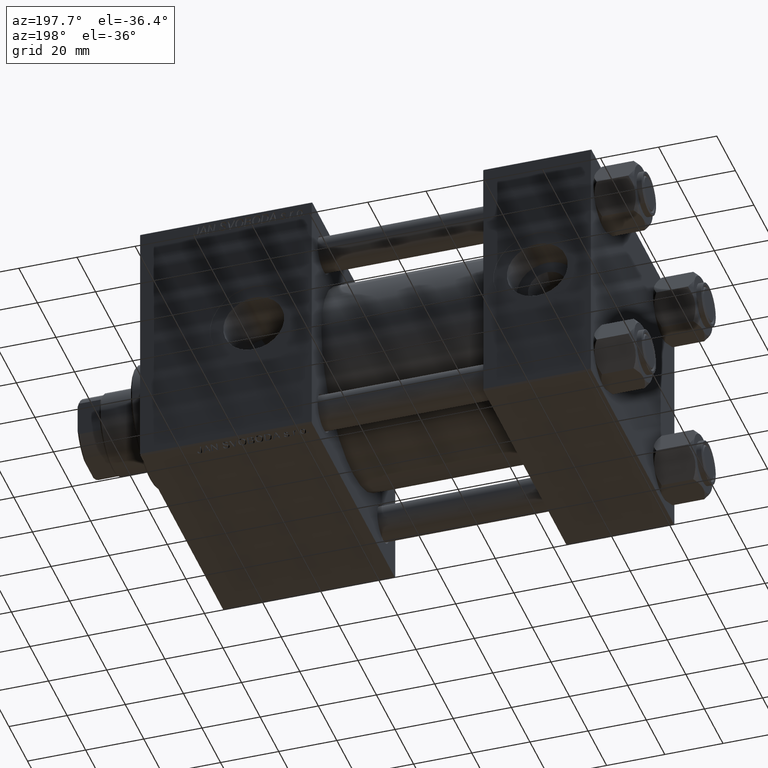
[diagram: clean part render]
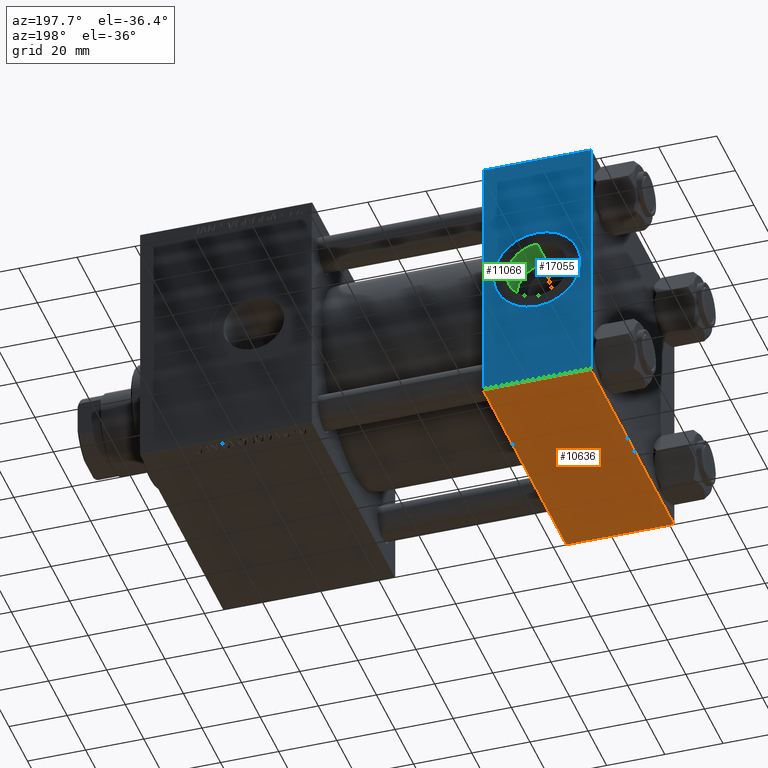
[diagram: same view with three faces highlighted in distinct colors, each labeled with its STEP entity id]
A machine part, auxiliary view with three faces highlighted in distinct colors.
Their STEP definitions:

[orange] entity #10636 — the highlighted planar face has unit normal (0, 0, -1).
#981 = CARTESIAN_POINT ( 'NONE',  ( 37.00000000000000000, 45.00000000000000000, -44.99999999999999289 ) ) ;
#1509 = ORIENTED_EDGE ( 'NONE', *, *, #35121, .F. ) ;
#1976 = EDGE_LOOP ( 'NONE', ( #1509, #42841, #12469, #7493 ) ) ;
#2230 = VECTOR ( 'NONE', #45332, 1000.000000000000000 ) ;
#3685 = CARTESIAN_POINT ( 'NONE',  ( 0.000000000000000000, 45.00000000000000000, -44.99999999999999289 ) ) ;
#5182 = EDGE_CURVE ( 'NONE', #34582, #25458, #23657, .T. ) ;
#7493 = ORIENTED_EDGE ( 'NONE', *, *, #33392, .T. ) ;
#9340 = CARTESIAN_POINT ( 'NONE',  ( 37.00000000000000000, 45.00000000000000000, -44.99999999999999289 ) ) ;
#10636 = ADVANCED_FACE ( 'NONE', ( #47453 ), #20287, .T. ) ;
#12220 = DIRECTION ( 'NONE',  ( 1.000000000000000000, 0.000000000000000000, 0.000000000000000000 ) ) ;
#12411 = DIRECTION ( 'NONE',  ( 0.000000000000000000, 7.709882115452478166E-17, -1.000000000000000000 ) ) ;
#12469 = ORIENTED_EDGE ( 'NONE', *, *, #20220, .T. ) ;
#12991 = LINE ( 'NONE', #27468, #15995 ) ;
#14359 = LINE ( 'NONE', #3685, #2230 ) ;
#14659 = CARTESIAN_POINT ( 'NONE',  ( 37.00000000000000000, 44.50000000000000000, -44.99999999999999289 ) ) ;
#15476 = AXIS2_PLACEMENT_3D ( 'NONE', #981, #12411, #27901 ) ;
#15995 = VECTOR ( 'NONE', #28480, 1000.000000000000000 ) ;
#20220 = EDGE_CURVE ( 'NONE', #25458, #33154, #36020, .T. ) ;
#20287 = PLANE ( 'NONE',  #15476 ) ;
#23657 = LINE ( 'NONE', #39130, #44438 ) ;
#25458 = VERTEX_POINT ( 'NONE', #14659 ) ;
#27468 = CARTESIAN_POINT ( 'NONE',  ( 0.000000000000000000, -44.49999999999997158, -45.00000000000000000 ) ) ;
#27901 = DIRECTION ( 'NONE',  ( 0.000000000000000000, 1.000000000000000000, 7.709882115452478166E-17 ) ) ;
#28480 = DIRECTION ( 'NONE',  ( -1.000000000000000000, 0.000000000000000000, 0.000000000000000000 ) ) ;
#30727 = CARTESIAN_POINT ( 'NONE',  ( 0.000000000000000000, 44.50000000000000000, -44.99999999999999289 ) ) ;
#31280 = CARTESIAN_POINT ( 'NONE',  ( 0.000000000000000000, -44.49999999999994316, -45.00000000000000000 ) ) ;
#32250 = VERTEX_POINT ( 'NONE', #31280 ) ;
#33154 = VERTEX_POINT ( 'NONE', #43753 ) ;
#33392 = EDGE_CURVE ( 'NONE', #33154, #32250, #12991, .T. ) ;
#34582 = VERTEX_POINT ( 'NONE', #30727 ) ;
#35121 = EDGE_CURVE ( 'NONE', #34582, #32250, #14359, .T. ) ;
#35944 = VECTOR ( 'NONE', #36516, 1000.000000000000000 ) ;
#36020 = LINE ( 'NONE', #9340, #35944 ) ;
#36516 = DIRECTION ( 'NONE',  ( 0.000000000000000000, -1.000000000000000000, -7.709882115452476934E-17 ) ) ;
#39130 = CARTESIAN_POINT ( 'NONE',  ( 37.00000000000000000, 44.50000000000000000, -44.99999999999999289 ) ) ;
#42841 = ORIENTED_EDGE ( 'NONE', *, *, #5182, .T. ) ;
#43753 = CARTESIAN_POINT ( 'NONE',  ( 37.00000000000000000, -44.49999999999994316, -45.00000000000000000 ) ) ;
#44438 = VECTOR ( 'NONE', #12220, 1000.000000000000000 ) ;
#45332 = DIRECTION ( 'NONE',  ( 0.000000000000000000, -1.000000000000000000, -7.709882115452476934E-17 ) ) ;
#47453 = FACE_OUTER_BOUND ( 'NONE', #1976, .T. ) ;

[blue] entity #17055 — the highlighted planar face has unit normal (0, 1, 0).
#649 = CARTESIAN_POINT ( 'NONE',  ( 18.50000000000000000, 45.00000000000000000, 0.000000000000000000 ) ) ;
#1299 = DIRECTION ( 'NONE',  ( 1.000000000000000000, 0.000000000000000000, 0.000000000000000000 ) ) ;
#1754 = AXIS2_PLACEMENT_3D ( 'NONE', #31215, #41885, #8105 ) ;
#1797 = EDGE_CURVE ( 'NONE', #19657, #43036, #2992, .T. ) ;
#2335 = EDGE_CURVE ( 'NONE', #30548, #21937, #10393, .T. ) ;
#2992 = CIRCLE ( 'NONE', #38662, 15.00000000000000178 ) ;
#3299 = FACE_BOUND ( 'NONE', #25113, .T. ) ;
#3628 = VECTOR ( 'NONE', #4494, 1000.000000000000000 ) ;
#4494 = DIRECTION ( 'NONE',  ( 0.000000000000000000, 0.000000000000000000, -1.000000000000000000 ) ) ;
#5772 = CARTESIAN_POINT ( 'NONE',  ( 37.00000000000000000, 45.00000000000000000, 44.49999999999999289 ) ) ;
#6807 = ORIENTED_EDGE ( 'NONE', *, *, #18881, .T. ) ;
#8105 = DIRECTION ( 'NONE',  ( 0.000000000000000000, -0.000000000000000000, 1.000000000000000000 ) ) ;
#10393 = LINE ( 'NONE', #10901, #41920 ) ;
#10901 = CARTESIAN_POINT ( 'NONE',  ( 37.00000000000000000, 45.00000000000000000, 45.00000000000000711 ) ) ;
#13095 = DIRECTION ( 'NONE',  ( 0.000000000000000000, 0.000000000000000000, 1.000000000000000000 ) ) ;
#13561 = ORIENTED_EDGE ( 'NONE', *, *, #2335, .T. ) ;
#13901 = CARTESIAN_POINT ( 'NONE',  ( 0.000000000000000000, 45.00000000000000000, 44.49999999999999289 ) ) ;
#16084 = DIRECTION ( 'NONE',  ( 0.000000000000000000, 0.000000000000000000, 1.000000000000000000 ) ) ;
#16648 = DIRECTION ( 'NONE',  ( 0.000000000000000000, 1.000000000000000000, 0.000000000000000000 ) ) ;
#17055 = ADVANCED_FACE ( 'NONE', ( #3299, #22867 ), #30967, .T. ) ;
#18011 = CARTESIAN_POINT ( 'NONE',  ( 37.00000000000000000, 45.00000000000000000, -44.49999999999996447 ) ) ;
#18881 = EDGE_CURVE ( 'NONE', #47990, #30548, #41136, .T. ) ;
#19510 = EDGE_CURVE ( 'NONE', #43036, #19657, #26801, .T. ) ;
#19657 = VERTEX_POINT ( 'NONE', #30576 ) ;
#20282 = EDGE_CURVE ( 'NONE', #21937, #32572, #33201, .T. ) ;
#21937 = VERTEX_POINT ( 'NONE', #18011 ) ;
#22867 = FACE_OUTER_BOUND ( 'NONE', #29917, .T. ) ;
#23451 = ORIENTED_EDGE ( 'NONE', *, *, #27609, .F. ) ;
#25113 = EDGE_LOOP ( 'NONE', ( #29229, #39536 ) ) ;
#26801 = CIRCLE ( 'NONE', #33287, 15.00000000000000178 ) ;
#27609 = EDGE_CURVE ( 'NONE', #47990, #32572, #46653, .T. ) ;
#27815 = VECTOR ( 'NONE', #41818, 1000.000000000000000 ) ;
#29229 = ORIENTED_EDGE ( 'NONE', *, *, #1797, .F. ) ;
#29917 = EDGE_LOOP ( 'NONE', ( #13561, #38121, #23451, #6807 ) ) ;
#30548 = VERTEX_POINT ( 'NONE', #5772 ) ;
#30576 = CARTESIAN_POINT ( 'NONE',  ( 18.50000000000000000, 45.00000000000000000, 15.00000000000000178 ) ) ;
#30967 = PLANE ( 'NONE',  #1754 ) ;
#31215 = CARTESIAN_POINT ( 'NONE',  ( 37.00000000000000000, 45.00000000000000000, 45.00000000000000711 ) ) ;
#32572 = VERTEX_POINT ( 'NONE', #33410 ) ;
#33201 = LINE ( 'NONE', #49188, #27815 ) ;
#33287 = AXIS2_PLACEMENT_3D ( 'NONE', #649, #16648, #13095 ) ;
#33410 = CARTESIAN_POINT ( 'NONE',  ( 0.000000000000000000, 45.00000000000000000, -44.49999999999996447 ) ) ;
#36100 = CARTESIAN_POINT ( 'NONE',  ( 37.00000000000000000, 45.00000000000000000, 44.49999999999999289 ) ) ;
#38121 = ORIENTED_EDGE ( 'NONE', *, *, #20282, .T. ) ;
#38662 = AXIS2_PLACEMENT_3D ( 'NONE', #39686, #42987, #16084 ) ;
#38755 = CARTESIAN_POINT ( 'NONE',  ( 18.50000000000000355, 45.00000000000000000, -15.00000000000000178 ) ) ;
#39273 = CARTESIAN_POINT ( 'NONE',  ( 0.000000000000000000, 45.00000000000000000, 45.00000000000000711 ) ) ;
#39536 = ORIENTED_EDGE ( 'NONE', *, *, #19510, .F. ) ;
#39686 = CARTESIAN_POINT ( 'NONE',  ( 18.50000000000000000, 45.00000000000000000, 0.000000000000000000 ) ) ;
#41136 = LINE ( 'NONE', #36100, #46505 ) ;
#41818 = DIRECTION ( 'NONE',  ( -1.000000000000000000, 0.000000000000000000, 0.000000000000000000 ) ) ;
#41885 = DIRECTION ( 'NONE',  ( -0.000000000000000000, 1.000000000000000000, 0.000000000000000000 ) ) ;
#41920 = VECTOR ( 'NONE', #49505, 1000.000000000000000 ) ;
#42987 = DIRECTION ( 'NONE',  ( 0.000000000000000000, 1.000000000000000000, 0.000000000000000000 ) ) ;
#43036 = VERTEX_POINT ( 'NONE', #38755 ) ;
#46505 = VECTOR ( 'NONE', #1299, 1000.000000000000000 ) ;
#46653 = LINE ( 'NONE', #39273, #3628 ) ;
#47990 = VERTEX_POINT ( 'NONE', #13901 ) ;
#49188 = CARTESIAN_POINT ( 'NONE',  ( 37.00000000000000000, 45.00000000000000000, -44.49999999999999289 ) ) ;
#49505 = DIRECTION ( 'NONE',  ( 0.000000000000000000, 0.000000000000000000, -1.000000000000000000 ) ) ;

[green] entity #11066 — the highlighted cylindrical surface (edge-blend (fillet) strip) has radius 10.48 mm, axis along (0, 1, 0).
#410 = CARTESIAN_POINT ( 'NONE',  ( 18.50000000000000000, 34.00000000000000000, -10.48000000000000043 ) ) ;
#1471 = AXIS2_PLACEMENT_3D ( 'NONE', #40736, #6200, #28582 ) ;
#1488 = VERTEX_POINT ( 'NONE', #30384 ) ;
#2178 = ORIENTED_EDGE ( 'NONE', *, *, #4563, .T. ) ;
#3226 = LINE ( 'NONE', #410, #21358 ) ;
#4563 = EDGE_CURVE ( 'NONE', #1488, #18495, #15286, .T. ) ;
#6200 = DIRECTION ( 'NONE',  ( 0.000000000000000000, 1.000000000000000000, 0.000000000000000000 ) ) ;
#6813 = CYLINDRICAL_SURFACE ( 'NONE', #27646, 10.48000000000000043 ) ;
#10077 = DIRECTION ( 'NONE',  ( 0.000000000000000000, 0.000000000000000000, 1.000000000000000000 ) ) ;
#10626 = DIRECTION ( 'NONE',  ( -0.000000000000000000, 1.000000000000000000, -0.000000000000000000 ) ) ;
#11066 = ADVANCED_FACE ( 'NONE', ( #42106 ), #6813, .F. ) ;
#11351 = DIRECTION ( 'NONE',  ( -0.000000000000000000, 1.000000000000000000, -0.000000000000000000 ) ) ;
#11992 = CARTESIAN_POINT ( 'NONE',  ( 18.50000000000000000, 34.00000000000000000, -10.48000000000000043 ) ) ;
#12108 = VECTOR ( 'NONE', #36754, 1000.000000000000000 ) ;
#12912 = LINE ( 'NONE', #44354, #12108 ) ;
#15286 = CIRCLE ( 'NONE', #1471, 10.48000000000000043 ) ;
#18464 = CARTESIAN_POINT ( 'NONE',  ( 18.50000000000000000, 34.00000000000000000, 0.000000000000000000 ) ) ;
#18495 = VERTEX_POINT ( 'NONE', #20431 ) ;
#20352 = ORIENTED_EDGE ( 'NONE', *, *, #42945, .F. ) ;
#20381 = EDGE_CURVE ( 'NONE', #45594, #18495, #3226, .T. ) ;
#20431 = CARTESIAN_POINT ( 'NONE',  ( 18.50000000000000000, 44.79999999999999716, -10.48000000000000043 ) ) ;
#21358 = VECTOR ( 'NONE', #11351, 1000.000000000000000 ) ;
#27646 = AXIS2_PLACEMENT_3D ( 'NONE', #33746, #10626, #48714 ) ;
#28582 = DIRECTION ( 'NONE',  ( 0.000000000000000000, 0.000000000000000000, 1.000000000000000000 ) ) ;
#29242 = ORIENTED_EDGE ( 'NONE', *, *, #42818, .T. ) ;
#29698 = EDGE_LOOP ( 'NONE', ( #39615, #20352, #29242, #2178 ) ) ;
#30384 = CARTESIAN_POINT ( 'NONE',  ( 18.50000000000000000, 44.79999999999999716, 10.48000000000000043 ) ) ;
#33746 = CARTESIAN_POINT ( 'NONE',  ( 18.50000000000000000, 34.00000000000000000, 0.000000000000000000 ) ) ;
#36754 = DIRECTION ( 'NONE',  ( -0.000000000000000000, 1.000000000000000000, -0.000000000000000000 ) ) ;
#39615 = ORIENTED_EDGE ( 'NONE', *, *, #20381, .F. ) ;
#40736 = CARTESIAN_POINT ( 'NONE',  ( 18.50000000000000000, 44.79999999999999716, 0.000000000000000000 ) ) ;
#41562 = DIRECTION ( 'NONE',  ( 0.000000000000000000, 1.000000000000000000, 0.000000000000000000 ) ) ;
#41654 = VERTEX_POINT ( 'NONE', #47547 ) ;
#42106 = FACE_OUTER_BOUND ( 'NONE', #29698, .T. ) ;
#42818 = EDGE_CURVE ( 'NONE', #41654, #1488, #12912, .T. ) ;
#42945 = EDGE_CURVE ( 'NONE', #41654, #45594, #43705, .T. ) ;
#43705 = CIRCLE ( 'NONE', #50205, 10.48000000000000043 ) ;
#44354 = CARTESIAN_POINT ( 'NONE',  ( 18.50000000000000000, 34.00000000000000000, 10.48000000000000043 ) ) ;
#45594 = VERTEX_POINT ( 'NONE', #11992 ) ;
#47547 = CARTESIAN_POINT ( 'NONE',  ( 18.50000000000000000, 34.00000000000000000, 10.48000000000000043 ) ) ;
#48714 = DIRECTION ( 'NONE',  ( 0.000000000000000000, 0.000000000000000000, 1.000000000000000000 ) ) ;
#50205 = AXIS2_PLACEMENT_3D ( 'NONE', #18464, #41562, #10077 ) ;